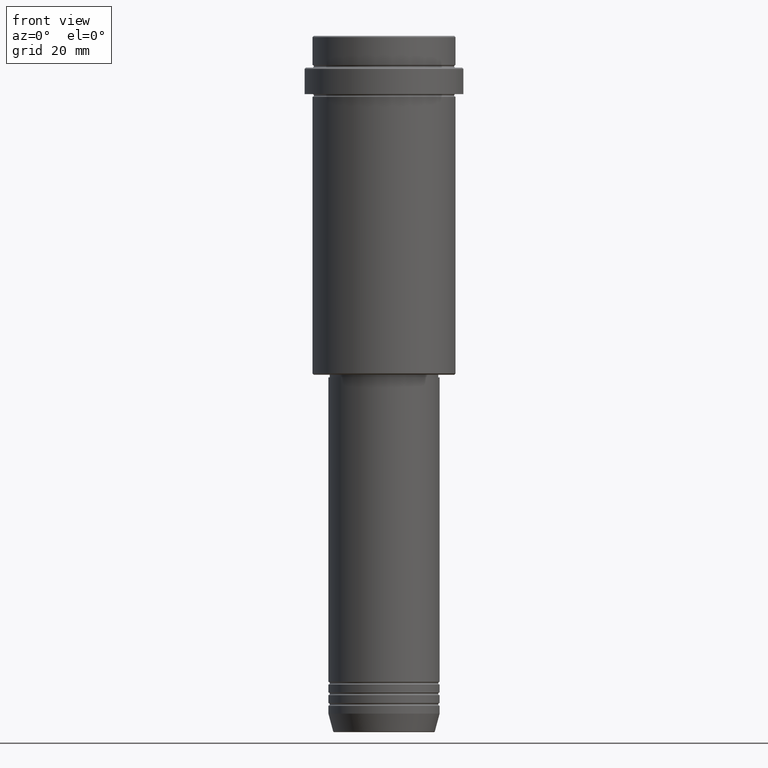
[diagram: clean part render]
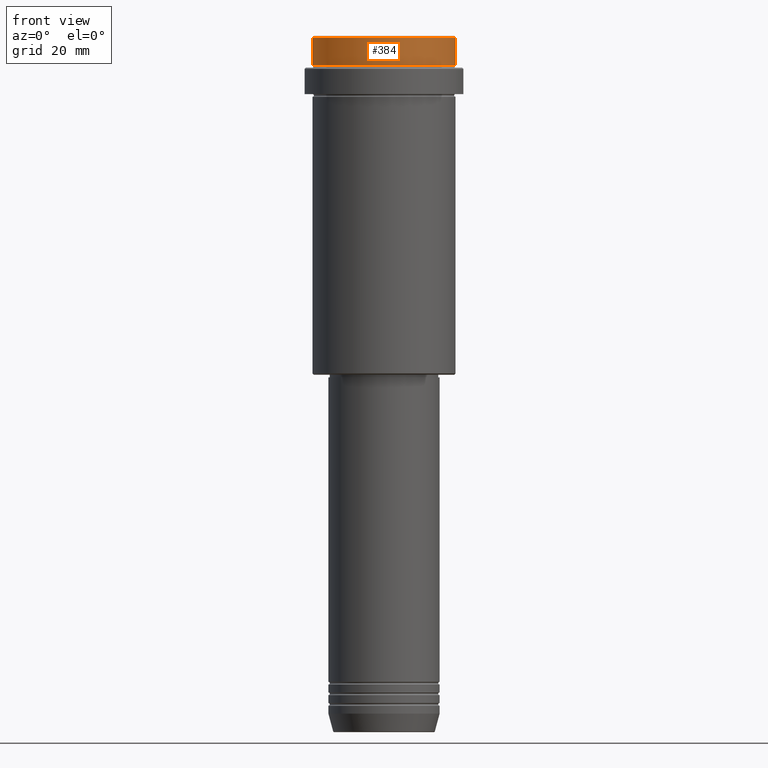
[diagram: same view with one face highlighted and labeled with its STEP entity id]
A machine part, front view. The second image highlights one B-rep face of the part: STEP entity #384.
In plain terms, the highlighted cylindrical surface (partial cylindrical patch) has radius 27 mm, axis along (-0, -0, 1).
Its self-contained STEP definition (entity closure, byte-faithful):
#25 = CARTESIAN_POINT ( 'NONE',  ( 0.000000000000000000, 0.000000000000000000, 0.000000000000000000 ) ) ;
#55 = CARTESIAN_POINT ( 'NONE',  ( -26.99999999999999645, 3.306546357697853339E-15, -0.5000000000000038858 ) ) ;
#59 = DIRECTION ( 'NONE',  ( -0.000000000000000000, -0.000000000000000000, 1.000000000000000000 ) ) ;
#82 = CARTESIAN_POINT ( 'NONE',  ( 0.000000000000000000, 0.000000000000000000, -11.00000000000000178 ) ) ;
#86 = AXIS2_PLACEMENT_3D ( 'NONE', #1172, #1396, #492 ) ;
#124 = DIRECTION ( 'NONE',  ( -0.000000000000000000, -0.000000000000000000, 1.000000000000000000 ) ) ;
#127 = EDGE_CURVE ( 'NONE', #1078, #249, #1261, .T. ) ;
#152 = VECTOR ( 'NONE', #124, 1000.000000000000000 ) ;
#215 = ORIENTED_EDGE ( 'NONE', *, *, #488, .T. ) ;
#249 = VERTEX_POINT ( 'NONE', #55 ) ;
#274 = DIRECTION ( 'NONE',  ( -0.000000000000000000, -0.000000000000000000, 1.000000000000000000 ) ) ;
#376 = EDGE_LOOP ( 'NONE', ( #1023, #1306, #1353, #215 ) ) ;
#384 = ADVANCED_FACE ( 'NONE', ( #604 ), #810, .T. ) ;
#452 = VERTEX_POINT ( 'NONE', #485 ) ;
#485 = CARTESIAN_POINT ( 'NONE',  ( 26.99999999999999645, 0.000000000000000000, -0.5000000000000038858 ) ) ;
#488 = EDGE_CURVE ( 'NONE', #452, #249, #1220, .T. ) ;
#492 = DIRECTION ( 'NONE',  ( 1.000000000000000000, 0.000000000000000000, 0.000000000000000000 ) ) ;
#508 = CARTESIAN_POINT ( 'NONE',  ( -26.99999999999999645, 3.306546357697853339E-15, 0.000000000000000000 ) ) ;
#525 = DIRECTION ( 'NONE',  ( 1.000000000000000000, 0.000000000000000000, 0.000000000000000000 ) ) ;
#566 = LINE ( 'NONE', #1004, #152 ) ;
#604 = FACE_OUTER_BOUND ( 'NONE', #376, .T. ) ;
#654 = CARTESIAN_POINT ( 'NONE',  ( -26.99999999999999645, 3.306546357697853339E-15, -11.00000000000000178 ) ) ;
#679 = AXIS2_PLACEMENT_3D ( 'NONE', #25, #1230, #793 ) ;
#793 = DIRECTION ( 'NONE',  ( 1.000000000000000000, 0.000000000000000000, 0.000000000000000000 ) ) ;
#810 = CYLINDRICAL_SURFACE ( 'NONE', #679, 26.99999999999999645 ) ;
#836 = EDGE_CURVE ( 'NONE', #1017, #452, #566, .T. ) ;
#934 = VECTOR ( 'NONE', #59, 1000.000000000000000 ) ;
#978 = EDGE_CURVE ( 'NONE', #1078, #1017, #1280, .T. ) ;
#1004 = CARTESIAN_POINT ( 'NONE',  ( 26.99999999999999645, 0.000000000000000000, 0.000000000000000000 ) ) ;
#1017 = VERTEX_POINT ( 'NONE', #1244 ) ;
#1023 = ORIENTED_EDGE ( 'NONE', *, *, #127, .F. ) ;
#1078 = VERTEX_POINT ( 'NONE', #654 ) ;
#1138 = AXIS2_PLACEMENT_3D ( 'NONE', #82, #274, #525 ) ;
#1172 = CARTESIAN_POINT ( 'NONE',  ( 0.000000000000000000, 0.000000000000000000, -0.5000000000000038858 ) ) ;
#1220 = CIRCLE ( 'NONE', #86, 26.99999999999999645 ) ;
#1230 = DIRECTION ( 'NONE',  ( -0.000000000000000000, -0.000000000000000000, 1.000000000000000000 ) ) ;
#1244 = CARTESIAN_POINT ( 'NONE',  ( 26.99999999999999645, 0.000000000000000000, -11.00000000000000178 ) ) ;
#1261 = LINE ( 'NONE', #508, #934 ) ;
#1280 = CIRCLE ( 'NONE', #1138, 26.99999999999999645 ) ;
#1306 = ORIENTED_EDGE ( 'NONE', *, *, #978, .T. ) ;
#1353 = ORIENTED_EDGE ( 'NONE', *, *, #836, .T. ) ;
#1396 = DIRECTION ( 'NONE',  ( 0.000000000000000000, 0.000000000000000000, -1.000000000000000000 ) ) ;